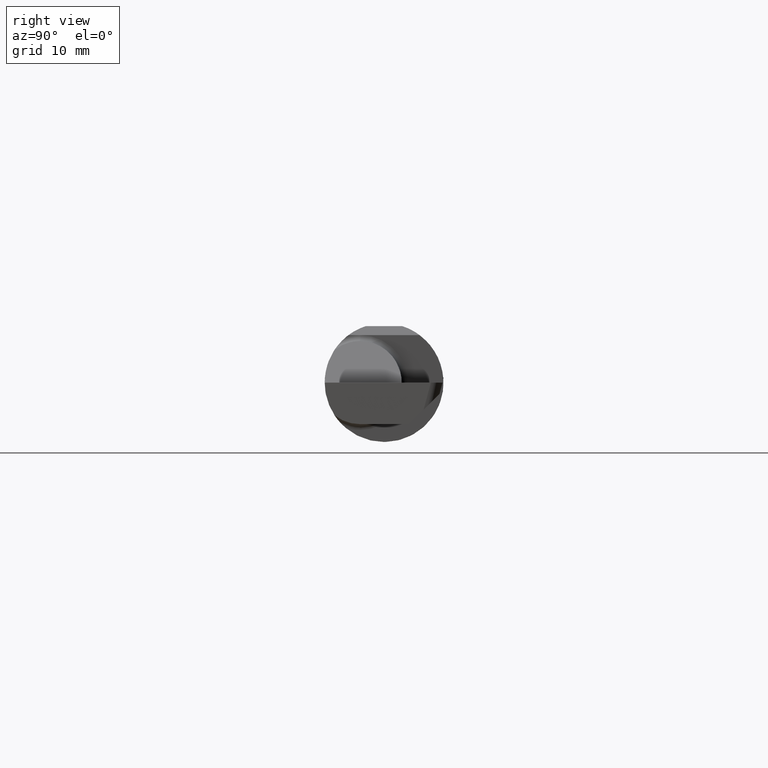
[diagram: clean part render]
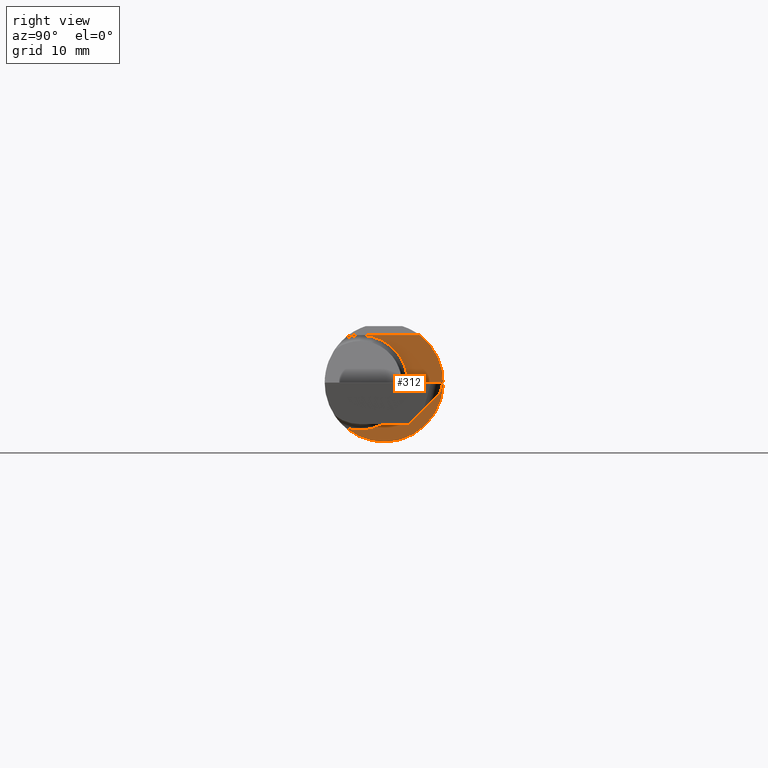
[diagram: same view with one face highlighted and labeled with its STEP entity id]
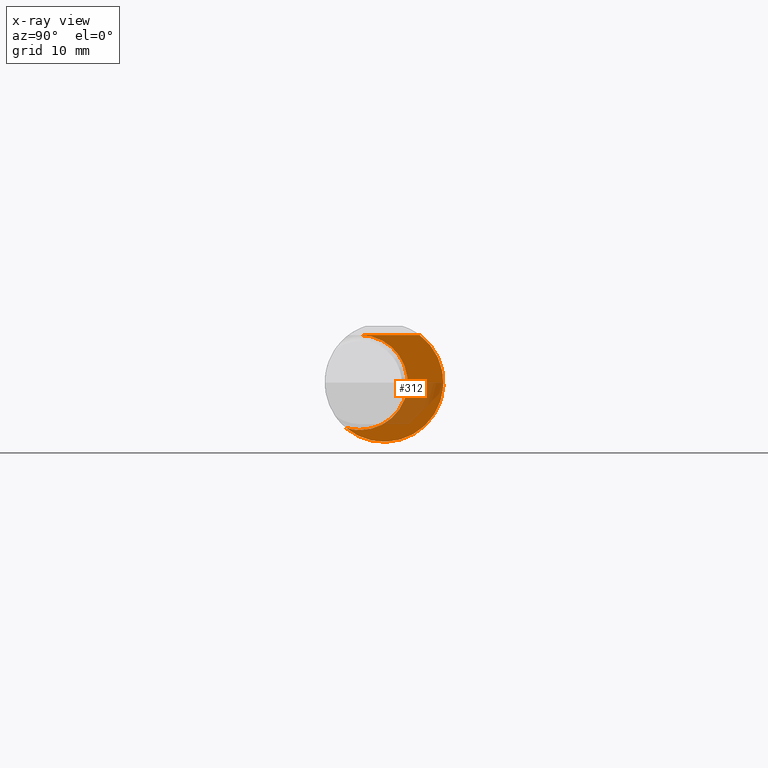
[diagram: x-ray of the same camera — body ghosted, the highlighted face saturated]
A machine part, right view. The second image highlights one B-rep face of the part: STEP entity #312.
The next image is the same camera in x-ray: the body ghosted, the highlighted face saturated — about 28% of this face is hidden behind the body in this view.
In plain terms, the highlighted planar face has unit normal (1, 0, 0).
Its self-contained STEP definition (entity closure, byte-faithful):
#8 = DIRECTION ( 'NONE',  ( -1.000000000000000000, -0.000000000000000000, -0.000000000000000000 ) ) ;
#22 = AXIS2_PLACEMENT_3D ( 'NONE', #687, #636, #622 ) ;
#45 = EDGE_CURVE ( 'NONE', #213, #156, #299, .T. ) ;
#91 = AXIS2_PLACEMENT_3D ( 'NONE', #251, #8, #137 ) ;
#101 = DIRECTION ( 'NONE',  ( 0.000000000000000000, -1.000000000000000000, 0.000000000000000000 ) ) ;
#105 = DIRECTION ( 'NONE',  ( 0.000000000000000000, 0.000000000000000000, -1.000000000000000000 ) ) ;
#126 = CARTESIAN_POINT ( 'NONE',  ( 2.450000000000000178, -0.1616050818046600723, -0.1905487340154983222 ) ) ;
#137 = DIRECTION ( 'NONE',  ( 0.000000000000000000, 0.000000000000000000, 1.000000000000000000 ) ) ;
#150 = FACE_OUTER_BOUND ( 'NONE', #261, .T. ) ;
#156 = VERTEX_POINT ( 'NONE', #126 ) ;
#204 = EDGE_CURVE ( 'NONE', #462, #213, #468, .T. ) ;
#213 = VERTEX_POINT ( 'NONE', #794 ) ;
#216 = DIRECTION ( 'NONE',  ( 0.000000000000000000, 0.000000000000000000, -1.000000000000000000 ) ) ;
#230 = CARTESIAN_POINT ( 'NONE',  ( 2.450000000000000178, -0.1008500000000001340, 0.1999999999999983180 ) ) ;
#251 = CARTESIAN_POINT ( 'NONE',  ( 2.450000000000000178, -0.1008500000000001340, 0.000000000000000000 ) ) ;
#261 = EDGE_LOOP ( 'NONE', ( #754, #339, #361, #496 ) ) ;
#279 = PLANE ( 'NONE',  #313 ) ;
#295 = DIRECTION ( 'NONE',  ( 1.000000000000000000, 0.000000000000000000, 0.000000000000000000 ) ) ;
#299 = CIRCLE ( 'NONE', #22, 0.2000000000000001221 ) ;
#312 = ADVANCED_FACE ( 'NONE', ( #150 ), #279, .T. ) ;
#313 = AXIS2_PLACEMENT_3D ( 'NONE', #543, #416, #216 ) ;
#329 = AXIS2_PLACEMENT_3D ( 'NONE', #761, #295, #105 ) ;
#339 = ORIENTED_EDGE ( 'NONE', *, *, #459, .T. ) ;
#361 = ORIENTED_EDGE ( 'NONE', *, *, #204, .T. ) ;
#412 = VECTOR ( 'NONE', #101, 39.37007874015748143 ) ;
#416 = DIRECTION ( 'NONE',  ( 1.000000000000000000, 0.000000000000000000, 0.000000000000000000 ) ) ;
#423 = VERTEX_POINT ( 'NONE', #768 ) ;
#442 = CARTESIAN_POINT ( 'NONE',  ( 2.450000000000000178, -0.2500000000000000555, 0.1999999999999983180 ) ) ;
#446 = LINE ( 'NONE', #442, #412 ) ;
#459 = EDGE_CURVE ( 'NONE', #423, #462, #446, .T. ) ;
#462 = VERTEX_POINT ( 'NONE', #230 ) ;
#468 = CIRCLE ( 'NONE', #91, 0.2000000000000001221 ) ;
#496 = ORIENTED_EDGE ( 'NONE', *, *, #45, .T. ) ;
#543 = CARTESIAN_POINT ( 'NONE',  ( 2.450000000000000178, 0.2498499999999999333, 0.000000000000000000 ) ) ;
#601 = CIRCLE ( 'NONE', #329, 0.2498499999999999888 ) ;
#622 = DIRECTION ( 'NONE',  ( 0.000000000000000000, 0.000000000000000000, 1.000000000000000000 ) ) ;
#636 = DIRECTION ( 'NONE',  ( -1.000000000000000000, -0.000000000000000000, -0.000000000000000000 ) ) ;
#687 = CARTESIAN_POINT ( 'NONE',  ( 2.450000000000000178, -0.1008500000000001340, 0.000000000000000000 ) ) ;
#754 = ORIENTED_EDGE ( 'NONE', *, *, #803, .T. ) ;
#761 = CARTESIAN_POINT ( 'NONE',  ( 2.450000000000000178, 0.000000000000000000, 0.000000000000000000 ) ) ;
#768 = CARTESIAN_POINT ( 'NONE',  ( 2.450000000000000178, 0.1497498664440162219, 0.1999999999999983180 ) ) ;
#794 = CARTESIAN_POINT ( 'NONE',  ( 2.450000000000000178, -0.1008500000000001340, -0.2000000000000001221 ) ) ;
#803 = EDGE_CURVE ( 'NONE', #156, #423, #601, .T. ) ;